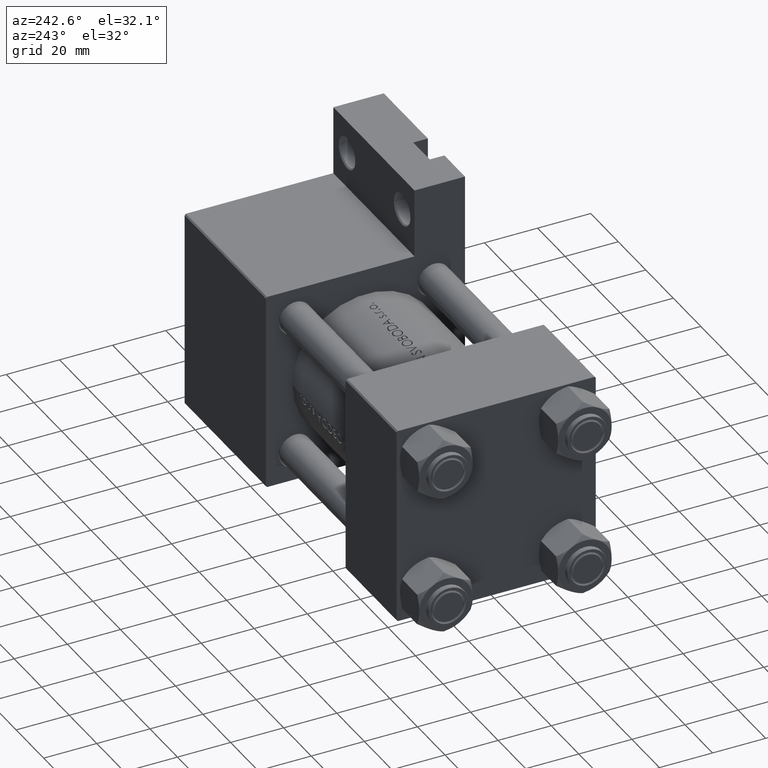
[diagram: clean part render]
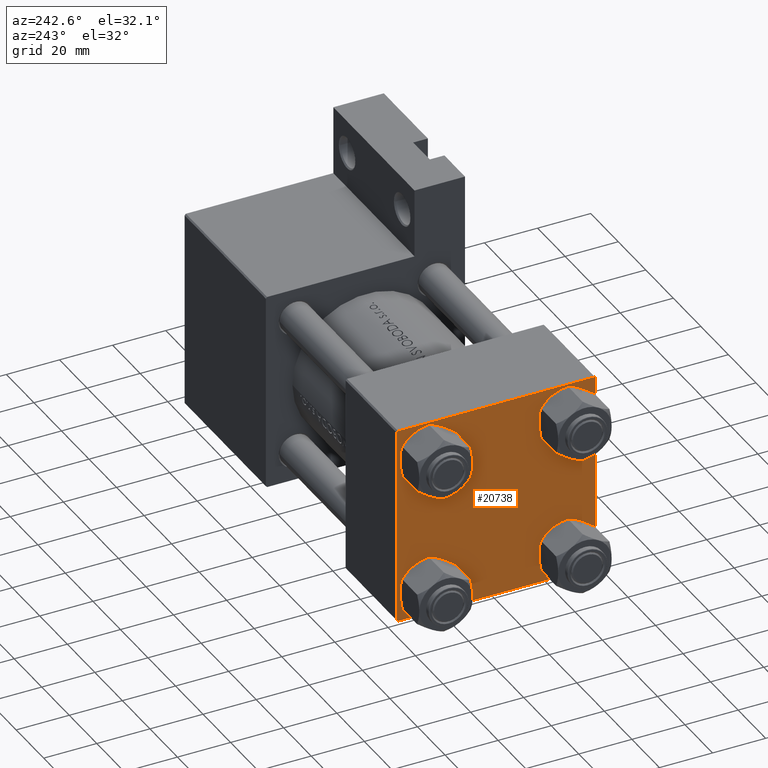
[diagram: same view with one face highlighted and labeled with its STEP entity id]
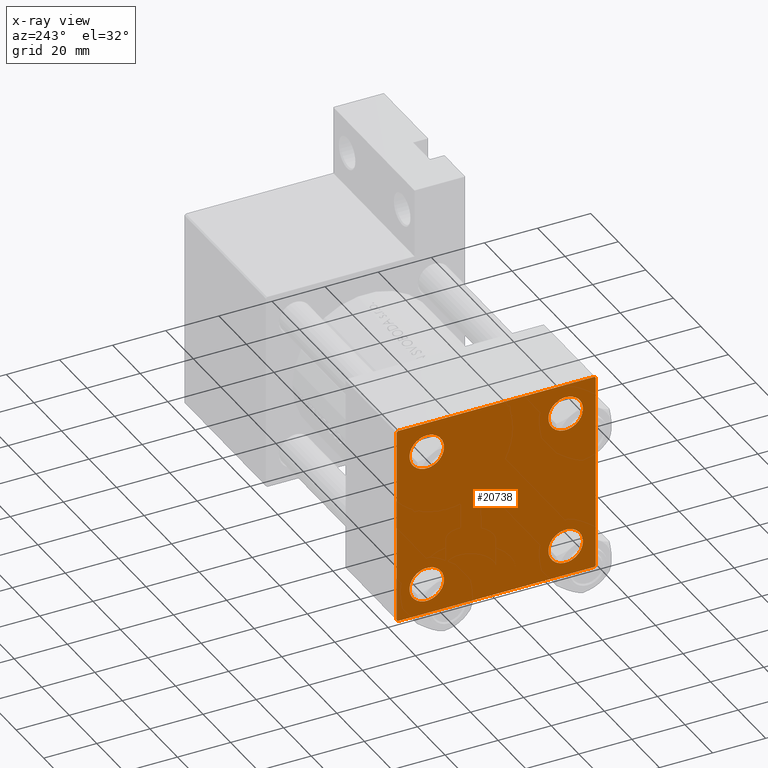
[diagram: x-ray of the same camera — body ghosted, the highlighted face saturated]
A machine part, auxiliary view. The second image highlights one B-rep face of the part: STEP entity #20738.
The next image is the same camera in x-ray: the body ghosted, the highlighted face saturated — about 0% of this face is hidden behind the body in this view.
In plain terms, the highlighted planar face has unit normal (-1, 0, -0).
Its self-contained STEP definition (entity closure, byte-faithful):
#143 = DIRECTION ( 'NONE',  ( 0.000000000000000000, 9.251858538542971581E-17, -1.000000000000000000 ) ) ;
#516 = EDGE_CURVE ( 'NONE', #43713, #10991, #36811, .T. ) ;
#649 = DIRECTION ( 'NONE',  ( 1.000000000000000000, -0.000000000000000000, 0.000000000000000000 ) ) ;
#751 = VERTEX_POINT ( 'NONE', #2792 ) ;
#868 = ORIENTED_EDGE ( 'NONE', *, *, #24764, .T. ) ;
#991 = EDGE_LOOP ( 'NONE', ( #31452, #7521 ) ) ;
#1211 = ORIENTED_EDGE ( 'NONE', *, *, #44255, .T. ) ;
#1268 = CARTESIAN_POINT ( 'NONE',  ( 0.000000000000000000, -37.50000000000000711, 36.99999999999999289 ) ) ;
#1382 = CARTESIAN_POINT ( 'NONE',  ( 0.000000000000000000, -26.14999999999999147, -32.65000000000002700 ) ) ;
#2068 = VECTOR ( 'NONE', #32155, 1000.000000000000114 ) ;
#2174 = EDGE_LOOP ( 'NONE', ( #4008, #1211 ) ) ;
#2759 = FACE_BOUND ( 'NONE', #2174, .T. ) ;
#2792 = CARTESIAN_POINT ( 'NONE',  ( 0.000000000000000000, 26.14999999999999858, 32.65000000000002700 ) ) ;
#2835 = CARTESIAN_POINT ( 'NONE',  ( 0.000000000000000000, 37.49999999999999289, 37.00000000000000000 ) ) ;
#3089 = ORIENTED_EDGE ( 'NONE', *, *, #32632, .F. ) ;
#3133 = CARTESIAN_POINT ( 'NONE',  ( -0.000000000000000000, -37.25000000000000000, 37.25000000000000000 ) ) ;
#3479 = CARTESIAN_POINT ( 'NONE',  ( 0.000000000000000000, 36.99999999999997868, -37.50000000000000000 ) ) ;
#4008 = ORIENTED_EDGE ( 'NONE', *, *, #18089, .T. ) ;
#4249 = DIRECTION ( 'NONE',  ( 0.000000000000000000, 0.000000000000000000, 1.000000000000000000 ) ) ;
#4423 = DIRECTION ( 'NONE',  ( 0.000000000000000000, 0.000000000000000000, 1.000000000000000000 ) ) ;
#4873 = VERTEX_POINT ( 'NONE', #5816 ) ;
#4900 = CARTESIAN_POINT ( 'NONE',  ( 0.000000000000000000, 26.14999999999999858, 26.15000000000000213 ) ) ;
#5094 = CIRCLE ( 'NONE', #28213, 6.500000000000015987 ) ;
#5509 = CARTESIAN_POINT ( 'NONE',  ( 0.000000000000000000, -26.14999999999999147, -26.15000000000000924 ) ) ;
#5816 = CARTESIAN_POINT ( 'NONE',  ( 0.000000000000000000, 26.14999999999999858, -32.65000000000001990 ) ) ;
#5848 = ORIENTED_EDGE ( 'NONE', *, *, #29819, .T. ) ;
#6072 = CARTESIAN_POINT ( 'NONE',  ( 0.000000000000000000, 26.14999999999999858, 26.15000000000000213 ) ) ;
#6279 = VERTEX_POINT ( 'NONE', #1382 ) ;
#6395 = AXIS2_PLACEMENT_3D ( 'NONE', #4900, #12364, #4423 ) ;
#7021 = DIRECTION ( 'NONE',  ( 0.000000000000000000, -0.7071067811865524577, 0.7071067811865426878 ) ) ;
#7104 = AXIS2_PLACEMENT_3D ( 'NONE', #26172, #649, #4249 ) ;
#7123 = LINE ( 'NONE', #21816, #32151 ) ;
#7521 = ORIENTED_EDGE ( 'NONE', *, *, #44692, .T. ) ;
#8491 = ORIENTED_EDGE ( 'NONE', *, *, #22851, .T. ) ;
#9173 = CARTESIAN_POINT ( 'NONE',  ( 0.000000000000000000, -37.50000000000000000, -37.00000000000003553 ) ) ;
#9207 = EDGE_CURVE ( 'NONE', #16271, #4873, #47167, .T. ) ;
#10099 = CIRCLE ( 'NONE', #43940, 6.500000000000015987 ) ;
#10214 = PLANE ( 'NONE',  #22870 ) ;
#10233 = CARTESIAN_POINT ( 'NONE',  ( 0.000000000000000000, 26.14999999999999858, -19.64999999999998792 ) ) ;
#10249 = EDGE_CURVE ( 'NONE', #751, #17346, #36455, .T. ) ;
#10557 = AXIS2_PLACEMENT_3D ( 'NONE', #40243, #17378, #13766 ) ;
#10620 = VECTOR ( 'NONE', #28158, 1000.000000000000000 ) ;
#10991 = VERTEX_POINT ( 'NONE', #44483 ) ;
#11574 = CARTESIAN_POINT ( 'NONE',  ( 0.000000000000000000, 26.14999999999999858, -26.15000000000000213 ) ) ;
#11773 = AXIS2_PLACEMENT_3D ( 'NONE', #41934, #38083, #15670 ) ;
#11826 = VERTEX_POINT ( 'NONE', #2835 ) ;
#12364 = DIRECTION ( 'NONE',  ( 1.000000000000000000, -0.000000000000000000, 0.000000000000000000 ) ) ;
#13513 = EDGE_LOOP ( 'NONE', ( #22859, #5848, #29280, #868, #3089, #32578, #45252, #8491 ) ) ;
#13766 = DIRECTION ( 'NONE',  ( 0.000000000000000000, 0.000000000000000000, 1.000000000000000000 ) ) ;
#13970 = EDGE_LOOP ( 'NONE', ( #34323, #29018 ) ) ;
#14309 = FACE_BOUND ( 'NONE', #991, .T. ) ;
#14422 = VECTOR ( 'NONE', #7021, 1000.000000000000000 ) ;
#15110 = CIRCLE ( 'NONE', #42036, 6.500000000000023093 ) ;
#15634 = VERTEX_POINT ( 'NONE', #28886 ) ;
#15670 = DIRECTION ( 'NONE',  ( 0.000000000000000000, 0.000000000000000000, 1.000000000000000000 ) ) ;
#16187 = DIRECTION ( 'NONE',  ( 1.000000000000000000, -0.000000000000000000, 0.000000000000000000 ) ) ;
#16271 = VERTEX_POINT ( 'NONE', #10233 ) ;
#16439 = CARTESIAN_POINT ( 'NONE',  ( 0.000000000000000000, 37.49999999999999289, 37.50000000000000000 ) ) ;
#16573 = VERTEX_POINT ( 'NONE', #34521 ) ;
#17346 = VERTEX_POINT ( 'NONE', #21742 ) ;
#17352 = CARTESIAN_POINT ( 'NONE',  ( 0.000000000000000000, 36.99999999999999289, 37.50000000000000000 ) ) ;
#17378 = DIRECTION ( 'NONE',  ( 1.000000000000000000, -0.000000000000000000, 0.000000000000000000 ) ) ;
#17599 = LINE ( 'NONE', #3133, #20979 ) ;
#17912 = EDGE_CURVE ( 'NONE', #11826, #15634, #24141, .T. ) ;
#18089 = EDGE_CURVE ( 'NONE', #21043, #20083, #15110, .T. ) ;
#18175 = EDGE_CURVE ( 'NONE', #4873, #16271, #5094, .T. ) ;
#18244 = CARTESIAN_POINT ( 'NONE',  ( 0.000000000000000000, -26.14999999999999147, 19.64999999999999147 ) ) ;
#18433 = LINE ( 'NONE', #33131, #34546 ) ;
#20083 = VERTEX_POINT ( 'NONE', #18244 ) ;
#20566 = CIRCLE ( 'NONE', #10557, 6.500000000000015987 ) ;
#20738 = ADVANCED_FACE ( 'NONE', ( #2759, #43226, #39852, #14309, #21066 ), #10214, .T. ) ;
#20979 = VECTOR ( 'NONE', #30016, 1000.000000000000114 ) ;
#21034 = VERTEX_POINT ( 'NONE', #42941 ) ;
#21043 = VERTEX_POINT ( 'NONE', #35714 ) ;
#21066 = FACE_OUTER_BOUND ( 'NONE', #13513, .T. ) ;
#21742 = CARTESIAN_POINT ( 'NONE',  ( 0.000000000000000000, 26.14999999999999858, 19.64999999999998437 ) ) ;
#21816 = CARTESIAN_POINT ( 'NONE',  ( 0.000000000000000000, 37.24999999999998579, -37.24999999999998579 ) ) ;
#22000 = DIRECTION ( 'NONE',  ( -0.000000000000000000, 0.000000000000000000, 1.000000000000000000 ) ) ;
#22851 = EDGE_CURVE ( 'NONE', #43046, #11826, #39635, .T. ) ;
#22859 = ORIENTED_EDGE ( 'NONE', *, *, #17912, .T. ) ;
#22870 = AXIS2_PLACEMENT_3D ( 'NONE', #24902, #39618, #22000 ) ;
#24061 = DIRECTION ( 'NONE',  ( 1.000000000000000000, -0.000000000000000000, 0.000000000000000000 ) ) ;
#24141 = LINE ( 'NONE', #16439, #43593 ) ;
#24764 = EDGE_CURVE ( 'NONE', #10991, #44123, #28706, .T. ) ;
#24902 = CARTESIAN_POINT ( 'NONE',  ( 0.000000000000000000, 0.000000000000000000, 0.000000000000000000 ) ) ;
#25594 = ORIENTED_EDGE ( 'NONE', *, *, #40602, .T. ) ;
#26172 = CARTESIAN_POINT ( 'NONE',  ( 0.000000000000000000, -26.14999999999999147, 26.15000000000000924 ) ) ;
#26413 = CARTESIAN_POINT ( 'NONE',  ( 0.000000000000000000, 37.49999999999999289, -37.50000000000000000 ) ) ;
#27573 = EDGE_CURVE ( 'NONE', #16573, #6279, #20566, .T. ) ;
#27748 = DIRECTION ( 'NONE',  ( 0.000000000000000000, 0.000000000000000000, 1.000000000000000000 ) ) ;
#28158 = DIRECTION ( 'NONE',  ( 0.000000000000000000, -1.000000000000000000, -9.251858538542971581E-17 ) ) ;
#28213 = AXIS2_PLACEMENT_3D ( 'NONE', #11574, #40741, #30352 ) ;
#28706 = LINE ( 'NONE', #35726, #14422 ) ;
#28886 = CARTESIAN_POINT ( 'NONE',  ( 0.000000000000000000, 37.49999999999999289, -36.99999999999998579 ) ) ;
#29018 = ORIENTED_EDGE ( 'NONE', *, *, #18175, .T. ) ;
#29280 = ORIENTED_EDGE ( 'NONE', *, *, #516, .T. ) ;
#29381 = EDGE_CURVE ( 'NONE', #43046, #21034, #38529, .T. ) ;
#29819 = EDGE_CURVE ( 'NONE', #15634, #43713, #7123, .T. ) ;
#30016 = DIRECTION ( 'NONE',  ( -0.000000000000000000, 0.7071067811865474617, 0.7071067811865474617 ) ) ;
#30352 = DIRECTION ( 'NONE',  ( 0.000000000000000000, 0.000000000000000000, 1.000000000000000000 ) ) ;
#31452 = ORIENTED_EDGE ( 'NONE', *, *, #10249, .T. ) ;
#31919 = CARTESIAN_POINT ( 'NONE',  ( 0.000000000000000000, 37.24999999999999289, 37.24999999999999289 ) ) ;
#32151 = VECTOR ( 'NONE', #36768, 1000.000000000000114 ) ;
#32155 = DIRECTION ( 'NONE',  ( 0.000000000000000000, 0.7071067811865474617, -0.7071067811865474617 ) ) ;
#32322 = CARTESIAN_POINT ( 'NONE',  ( 0.000000000000000000, -26.14999999999999147, 26.15000000000000924 ) ) ;
#32578 = ORIENTED_EDGE ( 'NONE', *, *, #44275, .T. ) ;
#32632 = EDGE_CURVE ( 'NONE', #36678, #44123, #18433, .T. ) ;
#32797 = DIRECTION ( 'NONE',  ( 0.000000000000000000, 0.000000000000000000, 1.000000000000000000 ) ) ;
#33131 = CARTESIAN_POINT ( 'NONE',  ( 0.000000000000000000, -37.50000000000000711, 37.49999999999999289 ) ) ;
#33206 = EDGE_LOOP ( 'NONE', ( #40877, #25594 ) ) ;
#33419 = DIRECTION ( 'NONE',  ( 0.000000000000000000, -1.000000000000000000, -9.251858538542972814E-17 ) ) ;
#34323 = ORIENTED_EDGE ( 'NONE', *, *, #9207, .T. ) ;
#34521 = CARTESIAN_POINT ( 'NONE',  ( 0.000000000000000000, -26.14999999999999147, -19.64999999999999503 ) ) ;
#34546 = VECTOR ( 'NONE', #143, 1000.000000000000000 ) ;
#35714 = CARTESIAN_POINT ( 'NONE',  ( 0.000000000000000000, -26.14999999999999147, 32.65000000000003411 ) ) ;
#35726 = CARTESIAN_POINT ( 'NONE',  ( 0.000000000000000000, -37.24999999999975842, -37.25000000000027001 ) ) ;
#36428 = DIRECTION ( 'NONE',  ( 1.000000000000000000, -0.000000000000000000, 0.000000000000000000 ) ) ;
#36455 = CIRCLE ( 'NONE', #40254, 6.500000000000023093 ) ;
#36678 = VERTEX_POINT ( 'NONE', #1268 ) ;
#36768 = DIRECTION ( 'NONE',  ( -0.000000000000000000, -0.7071067811865474617, -0.7071067811865474617 ) ) ;
#36811 = LINE ( 'NONE', #26413, #42396 ) ;
#37137 = CIRCLE ( 'NONE', #6395, 6.500000000000023093 ) ;
#38083 = DIRECTION ( 'NONE',  ( 1.000000000000000000, -0.000000000000000000, 0.000000000000000000 ) ) ;
#38529 = LINE ( 'NONE', #39019, #10620 ) ;
#38858 = DIRECTION ( 'NONE',  ( 0.000000000000000000, 0.000000000000000000, -1.000000000000000000 ) ) ;
#39019 = CARTESIAN_POINT ( 'NONE',  ( 0.000000000000000000, 37.49999999999999289, 37.50000000000000000 ) ) ;
#39618 = DIRECTION ( 'NONE',  ( -1.000000000000000000, 0.000000000000000000, -0.000000000000000000 ) ) ;
#39635 = LINE ( 'NONE', #31919, #2068 ) ;
#39852 = FACE_BOUND ( 'NONE', #13970, .T. ) ;
#40243 = CARTESIAN_POINT ( 'NONE',  ( 0.000000000000000000, -26.14999999999999147, -26.15000000000000924 ) ) ;
#40254 = AXIS2_PLACEMENT_3D ( 'NONE', #6072, #16187, #27748 ) ;
#40602 = EDGE_CURVE ( 'NONE', #6279, #16573, #10099, .T. ) ;
#40741 = DIRECTION ( 'NONE',  ( 1.000000000000000000, -0.000000000000000000, 0.000000000000000000 ) ) ;
#40877 = ORIENTED_EDGE ( 'NONE', *, *, #27573, .T. ) ;
#41934 = CARTESIAN_POINT ( 'NONE',  ( 0.000000000000000000, 26.14999999999999858, -26.15000000000000213 ) ) ;
#42036 = AXIS2_PLACEMENT_3D ( 'NONE', #32322, #36428, #32797 ) ;
#42396 = VECTOR ( 'NONE', #33419, 1000.000000000000000 ) ;
#42941 = CARTESIAN_POINT ( 'NONE',  ( 0.000000000000000000, -37.00000000000000711, 37.49999999999999289 ) ) ;
#43046 = VERTEX_POINT ( 'NONE', #17352 ) ;
#43226 = FACE_BOUND ( 'NONE', #33206, .T. ) ;
#43593 = VECTOR ( 'NONE', #38858, 1000.000000000000000 ) ;
#43713 = VERTEX_POINT ( 'NONE', #3479 ) ;
#43940 = AXIS2_PLACEMENT_3D ( 'NONE', #5509, #24061, #45744 ) ;
#44123 = VERTEX_POINT ( 'NONE', #9173 ) ;
#44255 = EDGE_CURVE ( 'NONE', #20083, #21043, #44801, .T. ) ;
#44275 = EDGE_CURVE ( 'NONE', #36678, #21034, #17599, .T. ) ;
#44483 = CARTESIAN_POINT ( 'NONE',  ( 0.000000000000000000, -37.00000000000002132, -37.50000000000000711 ) ) ;
#44692 = EDGE_CURVE ( 'NONE', #17346, #751, #37137, .T. ) ;
#44801 = CIRCLE ( 'NONE', #7104, 6.500000000000023093 ) ;
#45252 = ORIENTED_EDGE ( 'NONE', *, *, #29381, .F. ) ;
#45744 = DIRECTION ( 'NONE',  ( 0.000000000000000000, 0.000000000000000000, 1.000000000000000000 ) ) ;
#47167 = CIRCLE ( 'NONE', #11773, 6.500000000000015987 ) ;